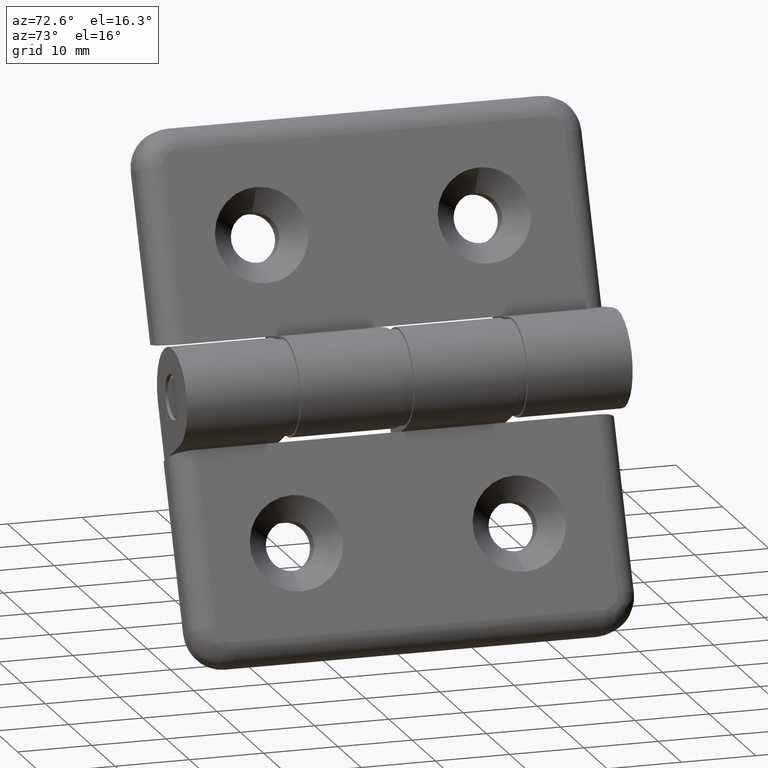
[diagram: clean part render]
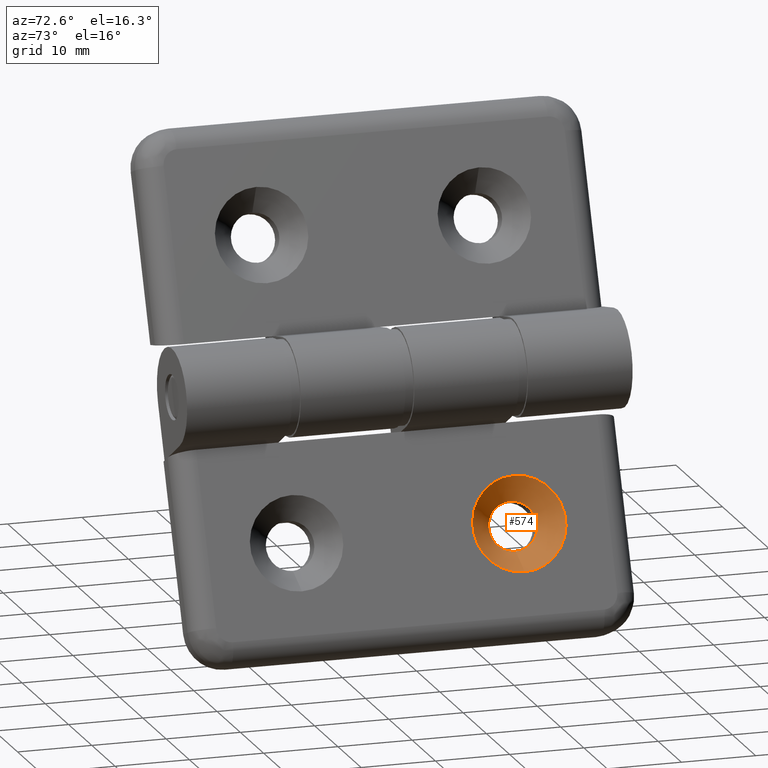
[diagram: same view with one face highlighted and labeled with its STEP entity id]
A machine part, auxiliary view. The second image highlights one B-rep face of the part: STEP entity #574.
In plain terms, the highlighted conical surface has half-angle 45 deg.
Its self-contained STEP definition (entity closure, byte-faithful):
#160=FACE_BOUND('',#221,.T.);
#181=FACE_OUTER_BOUND('',#220,.T.);
#220=EDGE_LOOP('',(#432));
#221=EDGE_LOOP('',(#433));
#277=CIRCLE('',#619,6.25);
#278=CIRCLE('',#620,3.25);
#309=VERTEX_POINT('',#896);
#310=VERTEX_POINT('',#898);
#360=EDGE_CURVE('',#309,#309,#277,.T.);
#361=EDGE_CURVE('',#310,#310,#278,.T.);
#432=ORIENTED_EDGE('',*,*,#360,.F.);
#433=ORIENTED_EDGE('',*,*,#361,.F.);
#571=CONICAL_SURFACE('',#618,4.75,45.);
#574=ADVANCED_FACE('',(#181,#160),#571,.F.);
#618=AXIS2_PLACEMENT_3D('',#895,#703,#704);
#619=AXIS2_PLACEMENT_3D('',#897,#705,#706);
#620=AXIS2_PLACEMENT_3D('',#899,#707,#708);
#703=DIRECTION('center_axis',(0.,-1.38777878078145E-16,1.));
#704=DIRECTION('ref_axis',(1.,1.08845394571094E-16,1.51053328971548E-32));
#705=DIRECTION('center_axis',(0.,1.38777878078145E-16,-1.));
#706=DIRECTION('ref_axis',(1.,1.08845394571094E-16,1.51053328971548E-32));
#707=DIRECTION('center_axis',(0.,-1.38777878078145E-16,1.));
#708=DIRECTION('ref_axis',(1.,1.08845394571094E-16,1.51053328971548E-32));
#895=CARTESIAN_POINT('Origin',(12.5,45.,3.5));
#896=CARTESIAN_POINT('',(18.75,45.,5.));
#897=CARTESIAN_POINT('Origin',(12.5,45.,5.));
#898=CARTESIAN_POINT('',(15.75,45.,2.));
#899=CARTESIAN_POINT('Origin',(12.5,45.,2.));